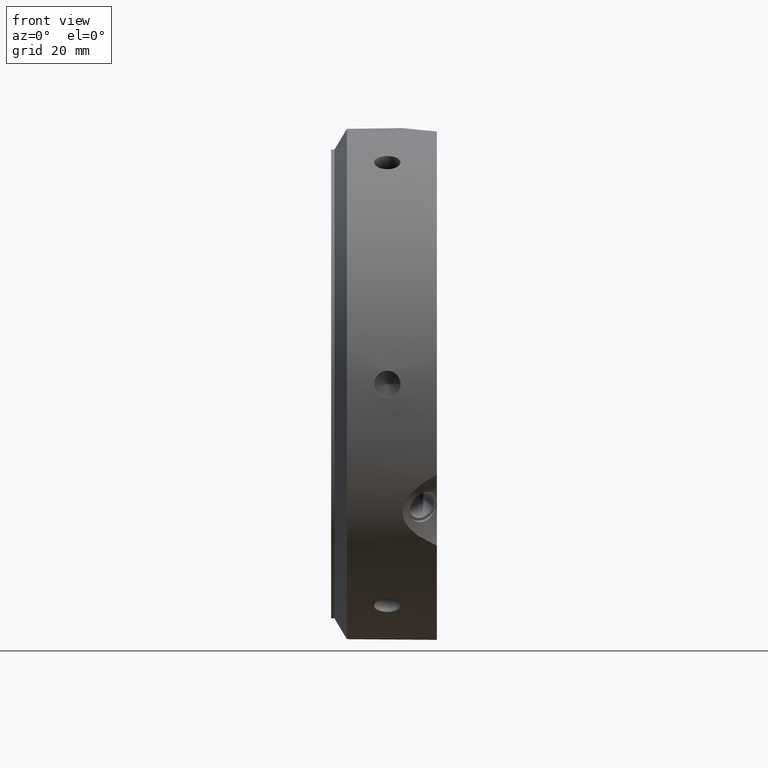
[diagram: clean part render]
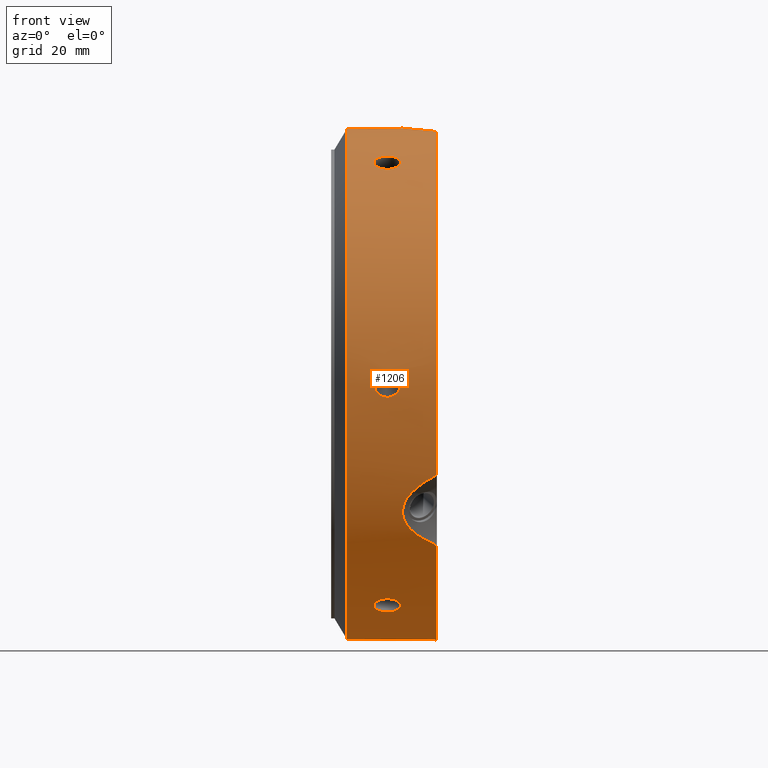
[diagram: same view with one face highlighted and labeled with its STEP entity id]
A machine part, front view. The second image highlights one B-rep face of the part: STEP entity #1206.
In plain terms, the highlighted cylindrical surface (bore or boss wall) has radius 77.5 mm, axis along (1, 0, 0).
Its self-contained STEP definition (entity closure, byte-faithful):
#90=CARTESIAN_POINT('',(12.999999999999975,38.750000000000064,67.116968793293978));
#91=VERTEX_POINT('',#90);
#92=CARTESIAN_POINT('',(20.999999999999979,38.750000000000078,67.116968793293964));
#93=VERTEX_POINT('',#92);
#94=CARTESIAN_POINT('',(12.999999999999979,38.750000000000078,67.11696879329395));
#95=CARTESIAN_POINT('',(12.999999999999979,39.185043186660138,66.865796492366655));
#96=CARTESIAN_POINT('',(13.100411949012871,39.646338478895402,66.593248442625367));
#97=CARTESIAN_POINT('',(13.508654408409747,40.490063661787559,66.083641225269488));
#98=CARTESIAN_POINT('',(13.816479979889074,40.872639249436915,65.846819360695505));
#99=CARTESIAN_POINT('',(14.526665855800518,41.474710207264337,65.469265097591347));
#100=CARTESIAN_POINT('',(14.976396927079161,41.734387922381238,65.303389078488408));
#101=CARTESIAN_POINT('',(15.96188785517314,42.078191929747788,65.082390278504732));
#102=CARTESIAN_POINT('',(16.497655277639652,42.162454293255784,65.027513007719406));
#103=CARTESIAN_POINT('',(17.502344722360302,42.162454293255784,65.027513007719406));
#104=CARTESIAN_POINT('',(18.038112144826819,42.078191929747788,65.082390278504732));
#105=CARTESIAN_POINT('',(19.0236030729208,41.734387922381238,65.303389078488408));
#106=CARTESIAN_POINT('',(19.473334144199438,41.474710207264337,65.469265097591347));
#107=CARTESIAN_POINT('',(20.183520020110883,40.872639249436915,65.846819360695505));
#108=CARTESIAN_POINT('',(20.491345591590203,40.490063661787559,66.083641225269488));
#109=CARTESIAN_POINT('',(20.899588050987084,39.646338478895395,66.593248442625367));
#110=CARTESIAN_POINT('',(20.999999999999979,39.185043186660138,66.865796492366641));
#111=CARTESIAN_POINT('',(20.999999999999979,38.750000000000078,67.11696879329395));
#112=B_SPLINE_CURVE_WITH_KNOTS('',3,(#94,#95,#96,#97,#98,#99,#100,#101,#102,#103,#104,#105,#106,#107,#108,#109,#110,#111),.UNSPECIFIED.,.F.,.U.,(4,2,2,2,2,2,2,2,4),(0.602813594528957,0.753516975085337,0.904220355641717,1.054923772349815,1.205627189057912,1.356330605766009,1.507034022474106,1.657737403030487,1.808440783586867),.UNSPECIFIED.);
#113=EDGE_CURVE('',#91,#93,#112,.T.);
#115=CARTESIAN_POINT('',(20.999999999999979,38.750000000000078,67.11696879329395));
#116=CARTESIAN_POINT('',(20.999999999999979,38.314956813340011,67.368141094221258));
#117=CARTESIAN_POINT('',(20.899588050987084,37.848275632394525,67.631360511072515));
#118=CARTESIAN_POINT('',(20.491345591590203,36.985080244766344,68.107244344591862));
#119=CARTESIAN_POINT('',(20.183520020110883,36.588698700048987,68.32015359007697));
#120=CARTESIAN_POINT('',(19.473334144199438,35.960691637979977,68.652785202884274));
#121=CARTESIAN_POINT('',(19.023603072920785,35.687199933999743,68.794734691420729));
#122=CARTESIAN_POINT('',(18.038112144826808,35.323907355324742,68.981978295731224));
#123=CARTESIAN_POINT('',(17.502344722360302,35.234251062980285,69.027513007719406));
#124=CARTESIAN_POINT('',(16.999999999999979,35.234251062980285,69.027513007719421));
#125=CARTESIAN_POINT('',(16.497655277639652,35.234251062980285,69.027513007719421));
#126=CARTESIAN_POINT('',(15.961887855173149,35.323907355324742,68.981978295731224));
#127=CARTESIAN_POINT('',(14.976396927079168,35.687199933999743,68.794734691420729));
#128=CARTESIAN_POINT('',(14.526665855800518,35.960691637979984,68.652785202884274));
#129=CARTESIAN_POINT('',(13.816479979889071,36.588698700048987,68.32015359007697));
#130=CARTESIAN_POINT('',(13.508654408409749,36.985080244766344,68.107244344591862));
#131=CARTESIAN_POINT('',(13.100411949012871,37.848275632394525,67.631360511072515));
#132=CARTESIAN_POINT('',(12.999999999999979,38.314956813340011,67.368141094221258));
#133=CARTESIAN_POINT('',(12.999999999999979,38.750000000000078,67.11696879329395));
#134=B_SPLINE_CURVE_WITH_KNOTS('',3,(#115,#116,#117,#118,#119,#120,#121,#122,#123,#124,#125,#126,#127,#128,#129,#130,#131,#132,#133),.UNSPECIFIED.,.F.,.U.,(4,2,2,2,3,2,2,2,4),(1.808440783586867,1.959144164143248,2.109847544699629,2.260550961407726,2.411254378115824,2.561957794823921,2.712661211532018,2.863364592088399,3.014067972644781),.UNSPECIFIED.);
#135=EDGE_CURVE('',#93,#91,#134,.T.);
#202=CARTESIAN_POINT('',(12.999999999999975,77.5,-5.162537E-014));
#203=VERTEX_POINT('',#202);
#204=CARTESIAN_POINT('',(20.999999999999979,77.5,-5.773160E-014));
#205=VERTEX_POINT('',#204);
#206=CARTESIAN_POINT('',(12.999999999999975,77.5,-5.898060E-014));
#207=CARTESIAN_POINT('',(12.999999999999975,77.5,-0.502344601854662));
#208=CARTESIAN_POINT('',(13.100411949012873,77.494614111289764,-1.038112068447203));
#209=CARTESIAN_POINT('',(13.508654408409749,77.475143906553754,-2.023603119322437));
#210=CARTESIAN_POINT('',(13.816479979889071,77.461337949485767,-2.473334229381534));
#211=CARTESIAN_POINT('',(14.526665855800518,77.435401845244186,-3.183520105292981));
#212=CARTESIAN_POINT('',(14.97639692707917,77.421587856380825,-3.49134561293239));
#213=CARTESIAN_POINT('',(15.961887855173151,77.402099285072381,-3.899588017226545));
#214=CARTESIAN_POINT('',(16.497655277639652,77.396705356235913,-4.00000000000006));
#215=CARTESIAN_POINT('',(17.502344722360302,77.396705356235913,-4.00000000000006));
#216=CARTESIAN_POINT('',(18.038112144826805,77.402099285072381,-3.899588017226544));
#217=CARTESIAN_POINT('',(19.023603072920785,77.421587856380825,-3.491345612932388));
#218=CARTESIAN_POINT('',(19.473334144199438,77.435401845244186,-3.183520105292981));
#219=CARTESIAN_POINT('',(20.183520020110883,77.461337949485781,-2.473334229381535));
#220=CARTESIAN_POINT('',(20.491345591590203,77.475143906553754,-2.02360311932244));
#221=CARTESIAN_POINT('',(20.899588050987084,77.494614111289764,-1.038112068447207));
#222=CARTESIAN_POINT('',(20.999999999999979,77.5,-0.502344601854664));
#223=CARTESIAN_POINT('',(20.999999999999979,77.5,-6.036838E-014));
#224=B_SPLINE_CURVE_WITH_KNOTS('',3,(#206,#207,#208,#209,#210,#211,#212,#213,#214,#215,#216,#217,#218,#219,#220,#221,#222,#223),.UNSPECIFIED.,.F.,.U.,(4,2,2,2,2,2,2,2,4),(0.602813594528956,0.753516975085337,0.904220355641718,1.054923772349815,1.205627189057912,1.356330605766009,1.507034022474106,1.657737403030487,1.808440783586868),.UNSPECIFIED.);
#225=EDGE_CURVE('',#203,#205,#224,.T.);
#227=CARTESIAN_POINT('',(20.999999999999979,77.5,-6.050715E-014));
#228=CARTESIAN_POINT('',(20.999999999999979,77.5,0.502344601854542));
#229=CARTESIAN_POINT('',(20.899588050987077,77.494614111289778,1.03811206844708));
#230=CARTESIAN_POINT('',(20.491345591590211,77.475143906553768,2.023603119322312));
#231=CARTESIAN_POINT('',(20.183520020110887,77.461337949485767,2.473334229381411));
#232=CARTESIAN_POINT('',(19.473334144199441,77.435401845244186,3.183520105292858));
#233=CARTESIAN_POINT('',(19.023603072920789,77.421587856380839,3.491345612932269));
#234=CARTESIAN_POINT('',(18.038112144826805,77.402099285072381,3.899588017226425));
#235=CARTESIAN_POINT('',(17.502344722360302,77.396705356235941,3.999999999999941));
#236=CARTESIAN_POINT('',(16.999999999999979,77.396705356235941,3.999999999999941));
#237=CARTESIAN_POINT('',(16.497655277639652,77.396705356235941,3.999999999999941));
#238=CARTESIAN_POINT('',(15.961887855173149,77.402099285072381,3.899588017226426));
#239=CARTESIAN_POINT('',(14.976396927079168,77.421587856380839,3.49134561293227));
#240=CARTESIAN_POINT('',(14.526665855800518,77.435401845244186,3.183520105292862));
#241=CARTESIAN_POINT('',(13.816479979889071,77.461337949485767,2.473334229381416));
#242=CARTESIAN_POINT('',(13.508654408409749,77.475143906553768,2.023603119322317));
#243=CARTESIAN_POINT('',(13.100411949012873,77.494614111289778,1.038112068447084));
#244=CARTESIAN_POINT('',(12.999999999999975,77.5,0.502344601854544));
#245=CARTESIAN_POINT('',(12.999999999999975,77.5,-5.925815E-014));
#246=B_SPLINE_CURVE_WITH_KNOTS('',3,(#227,#228,#229,#230,#231,#232,#233,#234,#235,#236,#237,#238,#239,#240,#241,#242,#243,#244,#245),.UNSPECIFIED.,.F.,.U.,(4,2,2,2,3,2,2,2,4),(1.808440783586868,1.959144164143249,2.10984754469963,2.260550961407727,2.411254378115824,2.561957794823921,2.712661211532019,2.863364592088399,3.014067972644781),.UNSPECIFIED.);
#247=EDGE_CURVE('',#205,#203,#246,.T.);
#314=CARTESIAN_POINT('',(12.999999999999975,38.749999999999979,-67.116968793294006));
#315=VERTEX_POINT('',#314);
#316=CARTESIAN_POINT('',(20.999999999999979,38.749999999999979,-67.116968793294006));
#317=VERTEX_POINT('',#316);
#318=CARTESIAN_POINT('',(12.999999999999975,38.749999999999986,-67.116968793294006));
#319=CARTESIAN_POINT('',(12.999999999999975,38.314956813339911,-67.368141094221301));
#320=CARTESIAN_POINT('',(13.100411949012871,37.848275632394433,-67.631360511072558));
#321=CARTESIAN_POINT('',(13.508654408409747,36.985080244766252,-68.107244344591905));
#322=CARTESIAN_POINT('',(13.816479979889071,36.588698700048901,-68.320153590077012));
#323=CARTESIAN_POINT('',(14.526665855800518,35.960691637979892,-68.652785202884331));
#324=CARTESIAN_POINT('',(14.976396927079163,35.687199933999651,-68.794734691420771));
#325=CARTESIAN_POINT('',(15.961887855173146,35.32390735532465,-68.981978295731267));
#326=CARTESIAN_POINT('',(16.497655277639652,35.234251062980199,-69.027513007719463));
#327=CARTESIAN_POINT('',(17.502344722360302,35.234251062980199,-69.027513007719463));
#328=CARTESIAN_POINT('',(18.038112144826808,35.323907355324657,-68.981978295731267));
#329=CARTESIAN_POINT('',(19.023603072920789,35.687199933999658,-68.794734691420771));
#330=CARTESIAN_POINT('',(19.473334144199434,35.960691637979892,-68.652785202884331));
#331=CARTESIAN_POINT('',(20.183520020110883,36.588698700048901,-68.320153590077012));
#332=CARTESIAN_POINT('',(20.491345591590203,36.985080244766245,-68.107244344591905));
#333=CARTESIAN_POINT('',(20.899588050987084,37.848275632394426,-67.631360511072558));
#334=CARTESIAN_POINT('',(20.999999999999979,38.314956813339911,-67.368141094221301));
#335=CARTESIAN_POINT('',(20.999999999999979,38.749999999999986,-67.116968793294006));
#336=B_SPLINE_CURVE_WITH_KNOTS('',3,(#318,#319,#320,#321,#322,#323,#324,#325,#326,#327,#328,#329,#330,#331,#332,#333,#334,#335),.UNSPECIFIED.,.F.,.U.,(4,2,2,2,2,2,2,2,4),(0.602813594528956,0.753516975085337,0.904220355641718,1.054923772349815,1.205627189057912,1.356330605766009,1.507034022474106,1.657737403030487,1.808440783586868),.UNSPECIFIED.);
#337=EDGE_CURVE('',#315,#317,#336,.T.);
#339=CARTESIAN_POINT('',(20.999999999999979,38.749999999999979,-67.116968793294006));
#340=CARTESIAN_POINT('',(20.999999999999979,39.185043186660046,-66.865796492366698));
#341=CARTESIAN_POINT('',(20.899588050987091,39.646338478895295,-66.593248442625423));
#342=CARTESIAN_POINT('',(20.491345591590218,40.490063661787474,-66.083641225269531));
#343=CARTESIAN_POINT('',(20.183520020110883,40.872639249436844,-65.846819360695562));
#344=CARTESIAN_POINT('',(19.473334144199438,41.474710207264266,-65.469265097591403));
#345=CARTESIAN_POINT('',(19.023603072920782,41.734387922381153,-65.303389078488451));
#346=CARTESIAN_POINT('',(18.038112144826805,42.078191929747703,-65.082390278504789));
#347=CARTESIAN_POINT('',(17.502344722360302,42.162454293255706,-65.027513007719463));
#348=CARTESIAN_POINT('',(16.999999999999979,42.162454293255706,-65.027513007719463));
#349=CARTESIAN_POINT('',(16.497655277639652,42.162454293255706,-65.027513007719463));
#350=CARTESIAN_POINT('',(15.961887855173149,42.078191929747703,-65.082390278504789));
#351=CARTESIAN_POINT('',(14.976396927079172,41.734387922381153,-65.303389078488451));
#352=CARTESIAN_POINT('',(14.526665855800518,41.474710207264266,-65.469265097591403));
#353=CARTESIAN_POINT('',(13.816479979889071,40.872639249436844,-65.846819360695562));
#354=CARTESIAN_POINT('',(13.50865440840975,40.490063661787481,-66.083641225269531));
#355=CARTESIAN_POINT('',(13.100411949012871,39.646338478895309,-66.593248442625409));
#356=CARTESIAN_POINT('',(12.999999999999975,39.185043186660053,-66.865796492366698));
#357=CARTESIAN_POINT('',(12.999999999999975,38.749999999999986,-67.116968793294006));
#358=B_SPLINE_CURVE_WITH_KNOTS('',3,(#339,#340,#341,#342,#343,#344,#345,#346,#347,#348,#349,#350,#351,#352,#353,#354,#355,#356,#357),.UNSPECIFIED.,.F.,.U.,(4,2,2,2,3,2,2,2,4),(1.808440783586868,1.959144164143249,2.109847544699631,2.260550961407728,2.411254378115824,2.561957794823921,2.712661211532018,2.863364592088399,3.014067972644781),.UNSPECIFIED.);
#359=EDGE_CURVE('',#317,#315,#358,.T.);
#426=CARTESIAN_POINT('',(12.999999999999975,-38.750000000000028,-67.116968793293978));
#427=VERTEX_POINT('',#426);
#428=CARTESIAN_POINT('',(20.999999999999979,-38.750000000000028,-67.116968793293978));
#429=VERTEX_POINT('',#428);
#430=CARTESIAN_POINT('',(12.999999999999975,-38.750000000000021,-67.116968793293978));
#431=CARTESIAN_POINT('',(12.999999999999975,-39.185043186660089,-66.86579649236667));
#432=CARTESIAN_POINT('',(13.100411949012873,-39.646338478895359,-66.593248442625395));
#433=CARTESIAN_POINT('',(13.508654408409752,-40.490063661787524,-66.083641225269503));
#434=CARTESIAN_POINT('',(13.816479979889071,-40.87263924943688,-65.84681936069552));
#435=CARTESIAN_POINT('',(14.526665855800518,-41.474710207264295,-65.469265097591375));
#436=CARTESIAN_POINT('',(14.976396927079168,-41.734387922381195,-65.303389078488422));
#437=CARTESIAN_POINT('',(15.961887855173151,-42.078191929747746,-65.082390278504761));
#438=CARTESIAN_POINT('',(16.497655277639652,-42.162454293255756,-65.027513007719449));
#439=CARTESIAN_POINT('',(17.502344722360302,-42.162454293255756,-65.027513007719449));
#440=CARTESIAN_POINT('',(18.038112144826805,-42.078191929747746,-65.082390278504761));
#441=CARTESIAN_POINT('',(19.023603072920782,-41.734387922381195,-65.303389078488422));
#442=CARTESIAN_POINT('',(19.473334144199434,-41.474710207264309,-65.469265097591375));
#443=CARTESIAN_POINT('',(20.183520020110883,-40.872639249436887,-65.84681936069552));
#444=CARTESIAN_POINT('',(20.491345591590203,-40.490063661787524,-66.083641225269517));
#445=CARTESIAN_POINT('',(20.899588050987084,-39.646338478895359,-66.593248442625395));
#446=CARTESIAN_POINT('',(20.999999999999979,-39.185043186660096,-66.865796492366684));
#447=CARTESIAN_POINT('',(20.999999999999979,-38.750000000000028,-67.116968793293978));
#448=B_SPLINE_CURVE_WITH_KNOTS('',3,(#430,#431,#432,#433,#434,#435,#436,#437,#438,#439,#440,#441,#442,#443,#444,#445,#446,#447),.UNSPECIFIED.,.F.,.U.,(4,2,2,2,2,2,2,2,4),(0.602813594528956,0.753516975085337,0.904220355641718,1.054923772349815,1.205627189057912,1.356330605766009,1.507034022474106,1.657737403030487,1.808440783586869),.UNSPECIFIED.);
#449=EDGE_CURVE('',#427,#429,#448,.T.);
#451=CARTESIAN_POINT('',(20.999999999999975,-38.750000000000028,-67.116968793293964));
#452=CARTESIAN_POINT('',(20.999999999999975,-38.314956813339961,-67.368141094221272));
#453=CARTESIAN_POINT('',(20.899588050987084,-37.848275632394476,-67.631360511072543));
#454=CARTESIAN_POINT('',(20.491345591590203,-36.985080244766301,-68.107244344591876));
#455=CARTESIAN_POINT('',(20.183520020110883,-36.588698700048951,-68.320153590076998));
#456=CARTESIAN_POINT('',(19.473334144199438,-35.960691637979942,-68.652785202884289));
#457=CARTESIAN_POINT('',(19.023603072920793,-35.687199933999693,-68.794734691420757));
#458=CARTESIAN_POINT('',(18.038112144826812,-35.323907355324693,-68.981978295731253));
#459=CARTESIAN_POINT('',(17.502344722360302,-35.234251062980249,-69.027513007719449));
#460=CARTESIAN_POINT('',(16.999999999999979,-35.234251062980249,-69.027513007719449));
#461=CARTESIAN_POINT('',(16.497655277639652,-35.234251062980249,-69.027513007719449));
#462=CARTESIAN_POINT('',(15.961887855173147,-35.323907355324693,-68.981978295731253));
#463=CARTESIAN_POINT('',(14.976396927079165,-35.687199933999693,-68.794734691420757));
#464=CARTESIAN_POINT('',(14.526665855800518,-35.960691637979949,-68.652785202884303));
#465=CARTESIAN_POINT('',(13.816479979889071,-36.588698700048951,-68.320153590076998));
#466=CARTESIAN_POINT('',(13.508654408409747,-36.985080244766301,-68.107244344591876));
#467=CARTESIAN_POINT('',(13.100411949012871,-37.848275632394476,-67.631360511072543));
#468=CARTESIAN_POINT('',(12.999999999999975,-38.314956813339954,-67.368141094221286));
#469=CARTESIAN_POINT('',(12.999999999999975,-38.750000000000014,-67.116968793293978));
#470=B_SPLINE_CURVE_WITH_KNOTS('',3,(#451,#452,#453,#454,#455,#456,#457,#458,#459,#460,#461,#462,#463,#464,#465,#466,#467,#468,#469),.UNSPECIFIED.,.F.,.U.,(4,2,2,2,3,2,2,2,4),(1.808440783586869,1.959144164143249,2.10984754469963,2.260550961407727,2.411254378115824,2.561957794823922,2.712661211532019,2.863364592088399,3.01406797264478),.UNSPECIFIED.);
#471=EDGE_CURVE('',#429,#427,#470,.T.);
#538=CARTESIAN_POINT('',(12.999999999999975,-77.5,2.151057E-014));
#539=VERTEX_POINT('',#538);
#540=CARTESIAN_POINT('',(20.999999999999979,-77.5,2.664535E-014));
#541=VERTEX_POINT('',#540);
#542=CARTESIAN_POINT('',(12.999999999999975,-77.5,2.234324E-014));
#543=CARTESIAN_POINT('',(12.999999999999975,-77.5,0.502344601854625));
#544=CARTESIAN_POINT('',(13.100411949012873,-77.494614111289764,1.038112068447165));
#545=CARTESIAN_POINT('',(13.508654408409749,-77.475143906553754,2.023603119322398));
#546=CARTESIAN_POINT('',(13.816479979889071,-77.461337949485767,2.473334229381496));
#547=CARTESIAN_POINT('',(14.526665855800518,-77.435401845244186,3.183520105292942));
#548=CARTESIAN_POINT('',(14.976396927079168,-77.421587856380825,3.491345612932352));
#549=CARTESIAN_POINT('',(15.961887855173149,-77.402099285072381,3.899588017226508));
#550=CARTESIAN_POINT('',(16.497655277639652,-77.396705356235941,4.000000000000023));
#551=CARTESIAN_POINT('',(17.502344722360302,-77.396705356235941,4.000000000000023));
#552=CARTESIAN_POINT('',(18.038112144826805,-77.402099285072381,3.899588017226508));
#553=CARTESIAN_POINT('',(19.023603072920785,-77.421587856380825,3.491345612932352));
#554=CARTESIAN_POINT('',(19.473334144199438,-77.435401845244186,3.183520105292943));
#555=CARTESIAN_POINT('',(20.183520020110883,-77.461337949485767,2.473334229381497));
#556=CARTESIAN_POINT('',(20.491345591590203,-77.475143906553754,2.023603119322399));
#557=CARTESIAN_POINT('',(20.899588050987084,-77.494614111289764,1.038112068447166));
#558=CARTESIAN_POINT('',(20.999999999999975,-77.5,0.502344601854626));
#559=CARTESIAN_POINT('',(20.999999999999975,-77.5,2.331468E-014));
#560=B_SPLINE_CURVE_WITH_KNOTS('',3,(#542,#543,#544,#545,#546,#547,#548,#549,#550,#551,#552,#553,#554,#555,#556,#557,#558,#559),.UNSPECIFIED.,.F.,.U.,(4,2,2,2,2,2,2,2,4),(0.602813594528956,0.753516975085337,0.904220355641718,1.054923772349815,1.205627189057912,1.356330605766009,1.507034022474106,1.657737403030487,1.808440783586868),.UNSPECIFIED.);
#561=EDGE_CURVE('',#539,#541,#560,.T.);
#563=CARTESIAN_POINT('',(20.999999999999975,-77.5,2.414735E-014));
#564=CARTESIAN_POINT('',(20.999999999999975,-77.5,-0.502344601854579));
#565=CARTESIAN_POINT('',(20.899588050987077,-77.494614111289778,-1.038112068447117));
#566=CARTESIAN_POINT('',(20.491345591590211,-77.475143906553768,-2.023603119322349));
#567=CARTESIAN_POINT('',(20.183520020110887,-77.461337949485767,-2.473334229381448));
#568=CARTESIAN_POINT('',(19.473334144199441,-77.435401845244186,-3.183520105292895));
#569=CARTESIAN_POINT('',(19.023603072920793,-77.421587856380839,-3.491345612932304));
#570=CARTESIAN_POINT('',(18.038112144826805,-77.402099285072381,-3.899588017226462));
#571=CARTESIAN_POINT('',(17.502344722360302,-77.396705356235941,-3.999999999999977));
#572=CARTESIAN_POINT('',(16.999999999999979,-77.396705356235941,-3.999999999999977));
#573=CARTESIAN_POINT('',(16.497655277639652,-77.396705356235941,-3.999999999999977));
#574=CARTESIAN_POINT('',(15.961887855173149,-77.402099285072381,-3.899588017226463));
#575=CARTESIAN_POINT('',(14.976396927079168,-77.421587856380839,-3.491345612932307));
#576=CARTESIAN_POINT('',(14.526665855800518,-77.435401845244186,-3.183520105292899));
#577=CARTESIAN_POINT('',(13.816479979889071,-77.461337949485767,-2.473334229381452));
#578=CARTESIAN_POINT('',(13.508654408409749,-77.475143906553768,-2.023603119322354));
#579=CARTESIAN_POINT('',(13.100411949012873,-77.494614111289778,-1.038112068447121));
#580=CARTESIAN_POINT('',(12.999999999999975,-77.5,-0.502344601854581));
#581=CARTESIAN_POINT('',(12.999999999999975,-77.5,2.262079E-014));
#582=B_SPLINE_CURVE_WITH_KNOTS('',3,(#563,#564,#565,#566,#567,#568,#569,#570,#571,#572,#573,#574,#575,#576,#577,#578,#579,#580,#581),.UNSPECIFIED.,.F.,.U.,(4,2,2,2,3,2,2,2,4),(1.808440783586868,1.959144164143249,2.10984754469963,2.260550961407727,2.411254378115824,2.561957794823921,2.712661211532019,2.863364592088399,3.014067972644781),.UNSPECIFIED.);
#583=EDGE_CURVE('',#541,#539,#582,.T.);
#687=CARTESIAN_POINT('',(12.999999999999975,-38.749999999999986,67.116968793294006));
#688=VERTEX_POINT('',#687);
#689=CARTESIAN_POINT('',(20.999999999999979,-38.749999999999986,67.116968793294006));
#690=VERTEX_POINT('',#689);
#691=CARTESIAN_POINT('',(12.999999999999975,-38.749999999999993,67.116968793293992));
#692=CARTESIAN_POINT('',(12.999999999999975,-38.314956813339926,67.368141094221301));
#693=CARTESIAN_POINT('',(13.100411949012871,-37.848275632394433,67.631360511072558));
#694=CARTESIAN_POINT('',(13.508654408409747,-36.985080244766259,68.107244344591905));
#695=CARTESIAN_POINT('',(13.816479979889071,-36.588698700048916,68.320153590077012));
#696=CARTESIAN_POINT('',(14.526665855800518,-35.960691637979906,68.652785202884331));
#697=CARTESIAN_POINT('',(14.97639692707917,-35.687199933999658,68.794734691420771));
#698=CARTESIAN_POINT('',(15.961887855173151,-35.323907355324657,68.981978295731267));
#699=CARTESIAN_POINT('',(16.497655277639652,-35.234251062980199,69.027513007719449));
#700=CARTESIAN_POINT('',(17.502344722360302,-35.234251062980199,69.027513007719463));
#701=CARTESIAN_POINT('',(18.038112144826808,-35.32390735532465,68.981978295731267));
#702=CARTESIAN_POINT('',(19.023603072920789,-35.687199933999651,68.794734691420771));
#703=CARTESIAN_POINT('',(19.473334144199438,-35.960691637979906,68.652785202884331));
#704=CARTESIAN_POINT('',(20.183520020110883,-36.588698700048909,68.320153590077012));
#705=CARTESIAN_POINT('',(20.491345591590203,-36.985080244766252,68.107244344591905));
#706=CARTESIAN_POINT('',(20.899588050987084,-37.848275632394433,67.631360511072558));
#707=CARTESIAN_POINT('',(20.999999999999975,-38.314956813339919,67.368141094221301));
#708=CARTESIAN_POINT('',(20.999999999999975,-38.749999999999986,67.116968793293992));
#709=B_SPLINE_CURVE_WITH_KNOTS('',3,(#691,#692,#693,#694,#695,#696,#697,#698,#699,#700,#701,#702,#703,#704,#705,#706,#707,#708),.UNSPECIFIED.,.F.,.U.,(4,2,2,2,2,2,2,2,4),(0.602813594528957,0.753516975085337,0.904220355641718,1.054923772349816,1.205627189057913,1.35633060576601,1.507034022474107,1.657737403030488,1.808440783586869),.UNSPECIFIED.);
#710=EDGE_CURVE('',#688,#690,#709,.T.);
#712=CARTESIAN_POINT('',(20.999999999999979,-38.749999999999986,67.116968793294006));
#713=CARTESIAN_POINT('',(20.999999999999979,-39.185043186660053,66.865796492366698));
#714=CARTESIAN_POINT('',(20.899588050987077,-39.646338478895309,66.593248442625423));
#715=CARTESIAN_POINT('',(20.491345591590211,-40.490063661787474,66.083641225269531));
#716=CARTESIAN_POINT('',(20.183520020110883,-40.872639249436837,65.846819360695548));
#717=CARTESIAN_POINT('',(19.473334144199441,-41.474710207264252,65.469265097591403));
#718=CARTESIAN_POINT('',(19.023603072920789,-41.73438792238116,65.303389078488451));
#719=CARTESIAN_POINT('',(18.038112144826805,-42.07819192974771,65.082390278504775));
#720=CARTESIAN_POINT('',(17.502344722360302,-42.162454293255713,65.027513007719463));
#721=CARTESIAN_POINT('',(16.999999999999979,-42.162454293255713,65.027513007719463));
#722=CARTESIAN_POINT('',(16.497655277639652,-42.162454293255713,65.027513007719463));
#723=CARTESIAN_POINT('',(15.961887855173153,-42.07819192974771,65.082390278504775));
#724=CARTESIAN_POINT('',(14.976396927079172,-41.73438792238116,65.303389078488451));
#725=CARTESIAN_POINT('',(14.526665855800518,-41.474710207264266,65.469265097591389));
#726=CARTESIAN_POINT('',(13.816479979889069,-40.872639249436844,65.846819360695548));
#727=CARTESIAN_POINT('',(13.50865440840975,-40.490063661787481,66.083641225269531));
#728=CARTESIAN_POINT('',(13.100411949012871,-39.646338478895316,66.593248442625409));
#729=CARTESIAN_POINT('',(12.999999999999979,-39.185043186660053,66.865796492366698));
#730=CARTESIAN_POINT('',(12.999999999999979,-38.749999999999986,67.116968793294006));
#731=B_SPLINE_CURVE_WITH_KNOTS('',3,(#712,#713,#714,#715,#716,#717,#718,#719,#720,#721,#722,#723,#724,#725,#726,#727,#728,#729,#730),.UNSPECIFIED.,.F.,.U.,(4,2,2,2,3,2,2,2,4),(1.808440783586869,1.959144164143249,2.10984754469963,2.260550961407728,2.411254378115825,2.561957794823922,2.712661211532019,2.8633645920884,3.014067972644781),.UNSPECIFIED.);
#732=EDGE_CURVE('',#690,#688,#731,.T.);
#747=CARTESIAN_POINT('',(31.999999999999986,72.461374013148685,-27.488166110648056));
#748=VERTEX_POINT('',#747);
#796=CARTESIAN_POINT('',(31.999999999999989,60.036137161841992,-49.009307633188357));
#797=VERTEX_POINT('',#796);
#805=CARTESIAN_POINT('',(31.999999999999989,72.461374013148685,-27.488166110648059));
#806=CARTESIAN_POINT('',(30.727886869237754,72.21653344964237,-28.133588710846503));
#807=CARTESIAN_POINT('',(29.511345873384684,71.943882142890757,-28.826866588084762));
#808=CARTESIAN_POINT('',(26.677773195068447,71.173476158364238,-30.692680040205403));
#809=CARTESIAN_POINT('',(24.960939827908206,70.574721389559556,-32.069755613110317));
#810=CARTESIAN_POINT('',(23.056362939708741,69.445243648119771,-34.414543275889699));
#811=CARTESIAN_POINT('',(22.532013243614692,69.029919022306927,-35.242904359080697));
#812=CARTESIAN_POINT('',(21.807472637738208,68.125669253523824,-36.960590048813422));
#813=CARTESIAN_POINT('',(21.60769515458675,67.636581934694547,-37.850003638813774));
#814=CARTESIAN_POINT('',(21.60769515458675,66.597355651893395,-39.649996361186304));
#815=CARTESIAN_POINT('',(21.807472637738211,66.071644547896625,-40.518265198961444));
#816=CARTESIAN_POINT('',(22.532013243614699,65.03620998926263,-42.160211314960179));
#817=CARTESIAN_POINT('',(23.056362939708734,64.526490560619266,-42.934073533326909));
#818=CARTESIAN_POINT('',(24.960939827908195,63.060583748891865,-45.08462378181251));
#819=CARTESIAN_POINT('',(26.67777319506844,62.167378704227531,-46.291698408686869));
#820=CARTESIAN_POINT('',(29.511345873384673,60.936739848231568,-47.891796288574717));
#821=CARTESIAN_POINT('',(30.727886869237757,60.472669248037306,-48.474558185215756));
#822=CARTESIAN_POINT('',(31.999999999999993,60.036137161842007,-49.009307633188342));
#823=B_SPLINE_CURVE_WITH_KNOTS('',3,(#805,#806,#807,#808,#809,#810,#811,#812,#813,#814,#815,#816,#817,#818,#819,#820,#821,#822),.UNSPECIFIED.,.F.,.U.,(4,2,2,2,2,2,2,2,4),(2.405479883267482,2.825664737516778,3.449200507197467,3.760968392037811,4.072736276878155,4.3845041617185,4.696272046558843,5.319807816239532,5.739992670488829),.UNSPECIFIED.);
#824=EDGE_CURVE('',#748,#797,#823,.T.);
#933=CARTESIAN_POINT('',(31.999999999999986,-60.036137161842049,-49.009307633188286));
#934=VERTEX_POINT('',#933);
#982=CARTESIAN_POINT('',(31.999999999999986,-72.461374013148713,-27.488166110648017));
#983=VERTEX_POINT('',#982);
#991=CARTESIAN_POINT('',(31.999999999999979,-60.036137161842042,-49.009307633188293));
#992=CARTESIAN_POINT('',(30.661766507833633,-60.495358786102585,-48.446763623627135));
#993=CARTESIAN_POINT('',(29.385024561125483,-60.984999110865118,-47.831193283468387));
#994=CARTESIAN_POINT('',(26.54064038613981,-62.237356359633424,-46.197328911781817));
#995=CARTESIAN_POINT('',(24.866309150357182,-63.120413474343835,-45.000049895503409));
#996=CARTESIAN_POINT('',(23.012776425478378,-64.567027522797886,-42.872884835499541));
#997=CARTESIAN_POINT('',(22.503289165994676,-65.069687640134035,-42.10821139086611));
#998=CARTESIAN_POINT('',(21.800513551717259,-66.089552609676787,-40.48872376469766));
#999=CARTESIAN_POINT('',(21.60769515458675,-66.606760113617355,-39.633707355662573));
#1000=CARTESIAN_POINT('',(21.60769515458675,-67.627177472970658,-37.866292644337406));
#1001=CARTESIAN_POINT('',(21.800513551717287,-68.109039651877296,-36.990869602379377));
#1002=CARTESIAN_POINT('',(22.503289165994701,-69.001624592482344,-35.297896817241288));
#1003=CARTESIAN_POINT('',(23.012776425478361,-69.412521162466192,-34.480243663842181));
#1004=CARTESIAN_POINT('',(24.866309150357164,-70.531393118245148,-32.1638566184076));
#1005=CARTESIAN_POINT('',(26.540640386139778,-71.126738604405091,-30.80046721593661));
#1006=CARTESIAN_POINT('',(29.385024561125455,-71.91552803223982,-28.898961838046382));
#1007=CARTESIAN_POINT('',(30.661766507833633,-72.203807422252254,-28.167135708005379));
#1008=CARTESIAN_POINT('',(31.999999999999993,-72.461374013148699,-27.48816611064801));
#1009=B_SPLINE_CURVE_WITH_KNOTS('',3,(#991,#992,#993,#994,#995,#996,#997,#998,#999,#1000,#1001,#1002,#1003,#1004,#1005,#1006,#1007,#1008),.UNSPECIFIED.,.F.,.U.,(4,2,2,2,2,2,2,2,4),(2.333064658629881,2.774170285325842,3.386420700937818,3.692545908743806,3.998671116549795,4.304796324355783,4.61092153216177,5.223171947773745,5.664277574469709),.UNSPECIFIED.);
#1010=EDGE_CURVE('',#934,#983,#1009,.T.);
#1112=CARTESIAN_POINT('',(18.376388374866259,0.0,0.0));
#1113=DIRECTION('',(1.0,0.0,0.0));
#1114=DIRECTION('',(0.0,1.0,0.0));
#1115=AXIS2_PLACEMENT_3D('',#1112,#1113,#1114);
#1116=CYLINDRICAL_SURFACE('',#1115,77.5);
#1117=CARTESIAN_POINT('',(4.752776749732535,77.5,0.0));
#1118=VERTEX_POINT('',#1117);
#1119=CARTESIAN_POINT('',(4.752776749732535,0.0,0.0));
#1120=DIRECTION('',(1.0,0.0,0.0));
#1121=DIRECTION('',(0.0,1.0,0.0));
#1122=AXIS2_PLACEMENT_3D('',#1119,#1120,#1121);
#1123=CIRCLE('',#1122,77.5);
#1124=EDGE_CURVE('',#1118,#1118,#1123,.T.);
#1125=ORIENTED_EDGE('',*,*,#1124,.T.);
#1126=EDGE_LOOP('',(#1125));
#1127=FACE_OUTER_BOUND('',#1126,.T.);
#1128=ORIENTED_EDGE('',*,*,#113,.T.);
#1129=ORIENTED_EDGE('',*,*,#135,.T.);
#1130=EDGE_LOOP('',(#1128,#1129));
#1131=FACE_BOUND('',#1130,.T.);
#1132=ORIENTED_EDGE('',*,*,#225,.T.);
#1133=ORIENTED_EDGE('',*,*,#247,.T.);
#1134=EDGE_LOOP('',(#1132,#1133));
#1135=FACE_BOUND('',#1134,.T.);
#1136=ORIENTED_EDGE('',*,*,#337,.T.);
#1137=ORIENTED_EDGE('',*,*,#359,.T.);
#1138=EDGE_LOOP('',(#1136,#1137));
#1139=FACE_BOUND('',#1138,.T.);
#1140=ORIENTED_EDGE('',*,*,#449,.T.);
#1141=ORIENTED_EDGE('',*,*,#471,.T.);
#1142=EDGE_LOOP('',(#1140,#1141));
#1143=FACE_BOUND('',#1142,.T.);
#1144=ORIENTED_EDGE('',*,*,#561,.T.);
#1145=ORIENTED_EDGE('',*,*,#583,.T.);
#1146=EDGE_LOOP('',(#1144,#1145));
#1147=FACE_BOUND('',#1146,.T.);
#1148=ORIENTED_EDGE('',*,*,#710,.T.);
#1149=ORIENTED_EDGE('',*,*,#732,.T.);
#1150=EDGE_LOOP('',(#1148,#1149));
#1151=FACE_BOUND('',#1150,.T.);
#1152=ORIENTED_EDGE('',*,*,#824,.T.);
#1153=CARTESIAN_POINT('',(31.999999999999986,0.0,0.0));
#1154=DIRECTION('',(1.0,0.0,0.0));
#1155=DIRECTION('',(0.0,1.0,0.0));
#1156=AXIS2_PLACEMENT_3D('',#1153,#1154,#1155);
#1157=CIRCLE('',#1156,77.5);
#1158=EDGE_CURVE('',#934,#797,#1157,.T.);
#1159=ORIENTED_EDGE('',*,*,#1158,.F.);
#1160=ORIENTED_EDGE('',*,*,#1010,.T.);
#1161=CARTESIAN_POINT('',(31.999999999999986,-12.425236851306668,76.497473743836352));
#1162=VERTEX_POINT('',#1161);
#1163=CARTESIAN_POINT('',(31.999999999999986,0.0,0.0));
#1164=DIRECTION('',(1.0,0.0,0.0));
#1165=DIRECTION('',(0.0,1.0,0.0));
#1166=AXIS2_PLACEMENT_3D('',#1163,#1164,#1165);
#1167=CIRCLE('',#1166,77.5);
#1168=EDGE_CURVE('',#1162,#983,#1167,.T.);
#1169=ORIENTED_EDGE('',*,*,#1168,.F.);
#1170=CARTESIAN_POINT('',(31.999999999999986,12.425236851306668,76.497473743836352));
#1171=VERTEX_POINT('',#1170);
#1172=CARTESIAN_POINT('',(31.999999999999986,-12.425236851306662,76.497473743836338));
#1173=CARTESIAN_POINT('',(31.47920647692483,-12.14628802656453,76.542782497801483));
#1174=CARTESIAN_POINT('',(30.967268365451996,-11.857648918470836,76.588102428360372));
#1175=CARTESIAN_POINT('',(28.900312397609476,-10.625599173429661,76.773937903467925));
#1176=CARTESIAN_POINT('',(27.438398465909806,-9.5959046433928,76.912361823222653));
#1177=CARTESIAN_POINT('',(24.960766946167368,-7.386377317111502,77.15454276389795));
#1178=CARTESIAN_POINT('',(23.786735651603777,-6.094983837846733,77.273541427777431));
#1179=CARTESIAN_POINT('',(22.524081363402686,-3.925673143558324,77.403900901763848));
#1180=CARTESIAN_POINT('',(22.184777902830955,-3.163279425486945,77.439370513359151));
#1181=CARTESIAN_POINT('',(21.72631812332234,-1.59884448172637,77.487457944117338));
#1182=CARTESIAN_POINT('',(21.60769515458675,-0.796644678628224,77.5));
#1183=CARTESIAN_POINT('',(21.60769515458675,0.796644678628225,77.5));
#1184=CARTESIAN_POINT('',(21.72631812332234,1.598844481726372,77.487457944117338));
#1185=CARTESIAN_POINT('',(22.184777902830955,3.163279425486951,77.439370513359151));
#1186=CARTESIAN_POINT('',(22.524081363402683,3.92567314355833,77.403900901763848));
#1187=CARTESIAN_POINT('',(23.786735651603767,6.094983837846739,77.273541427777431));
#1188=CARTESIAN_POINT('',(24.960766946167364,7.386377317111502,77.15454276389795));
#1189=CARTESIAN_POINT('',(27.438398465909806,9.595904643392801,76.912361823222653));
#1190=CARTESIAN_POINT('',(28.900312397609479,10.625599173429656,76.773937903467925));
#1191=CARTESIAN_POINT('',(30.967268365452007,11.857648918470831,76.588102428360372));
#1192=CARTESIAN_POINT('',(31.479206476924819,12.146288026564529,76.542782497801483));
#1193=CARTESIAN_POINT('',(31.999999999999986,12.425236851306664,76.497473743836338));
#1194=B_SPLINE_CURVE_WITH_KNOTS('',3,(#1172,#1173,#1174,#1175,#1176,#1177,#1178,#1179,#1180,#1181,#1182,#1183,#1184,#1185,#1186,#1187,#1188,#1189,#1190,#1191,#1192,#1193),.UNSPECIFIED.,.F.,.U.,(4,2,2,2,2,2,2,2,2,2,4),(1.395118838667745,1.561744780019815,2.082326373359754,2.560313180536688,2.799306584125155,3.038299987713622,3.27729339130209,3.516286794890557,3.994273602067491,4.51485519540743,4.6814811367595),.UNSPECIFIED.);
#1195=EDGE_CURVE('',#1162,#1171,#1194,.T.);
#1196=ORIENTED_EDGE('',*,*,#1195,.T.);
#1197=CARTESIAN_POINT('',(31.999999999999986,0.0,0.0));
#1198=DIRECTION('',(1.0,0.0,0.0));
#1199=DIRECTION('',(0.0,1.0,0.0));
#1200=AXIS2_PLACEMENT_3D('',#1197,#1198,#1199);
#1201=CIRCLE('',#1200,77.5);
#1202=EDGE_CURVE('',#748,#1171,#1201,.T.);
#1203=ORIENTED_EDGE('',*,*,#1202,.F.);
#1204=EDGE_LOOP('',(#1152,#1159,#1160,#1169,#1196,#1203));
#1205=FACE_BOUND('',#1204,.T.);
#1206=ADVANCED_FACE('',(#1127,#1131,#1135,#1139,#1143,#1147,#1151,#1205),#1116,.T.);